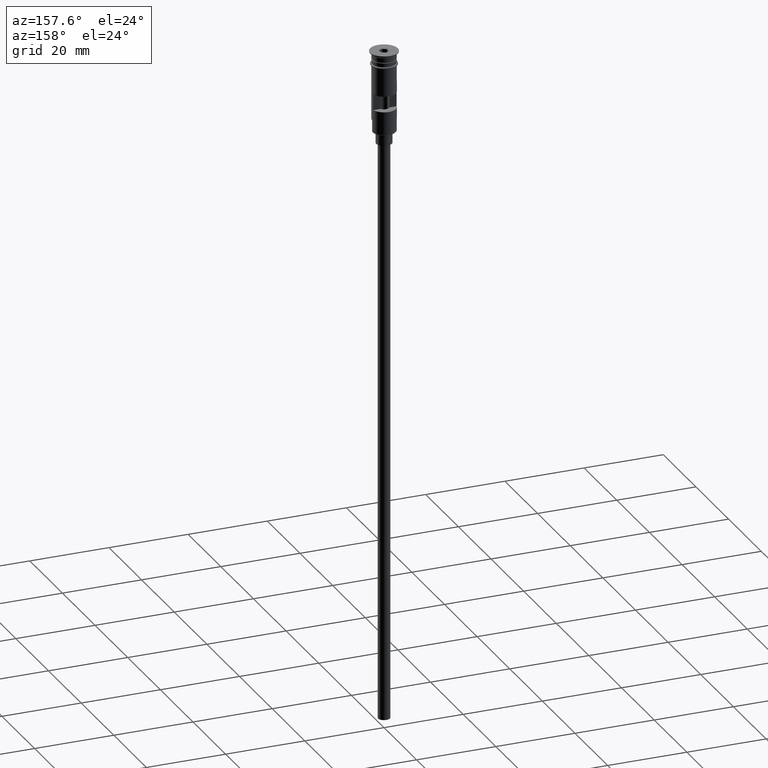
[diagram: clean part render]
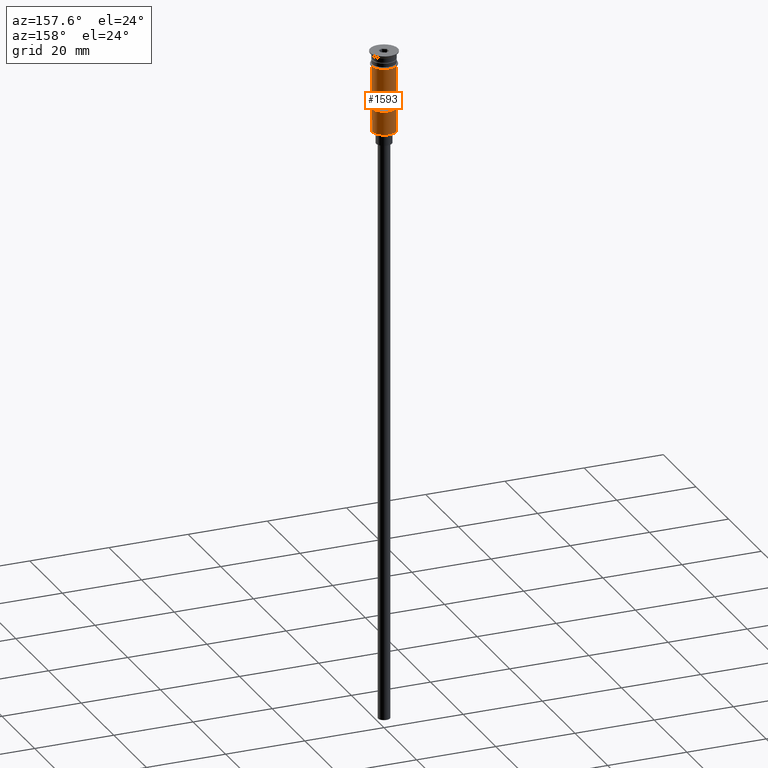
[diagram: same view with one face highlighted and labeled with its STEP entity id]
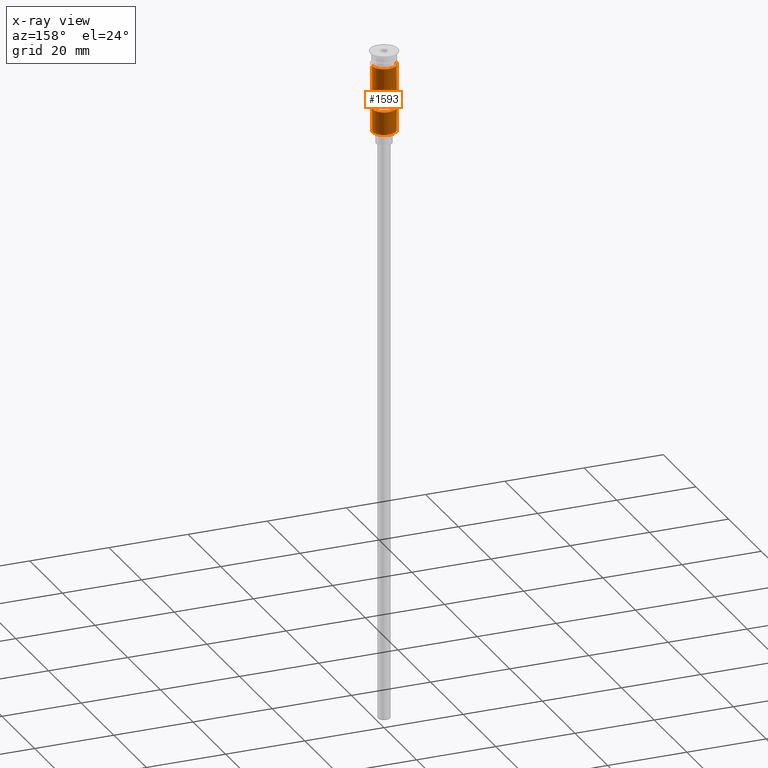
[diagram: x-ray of the same camera — body ghosted, the highlighted face saturated]
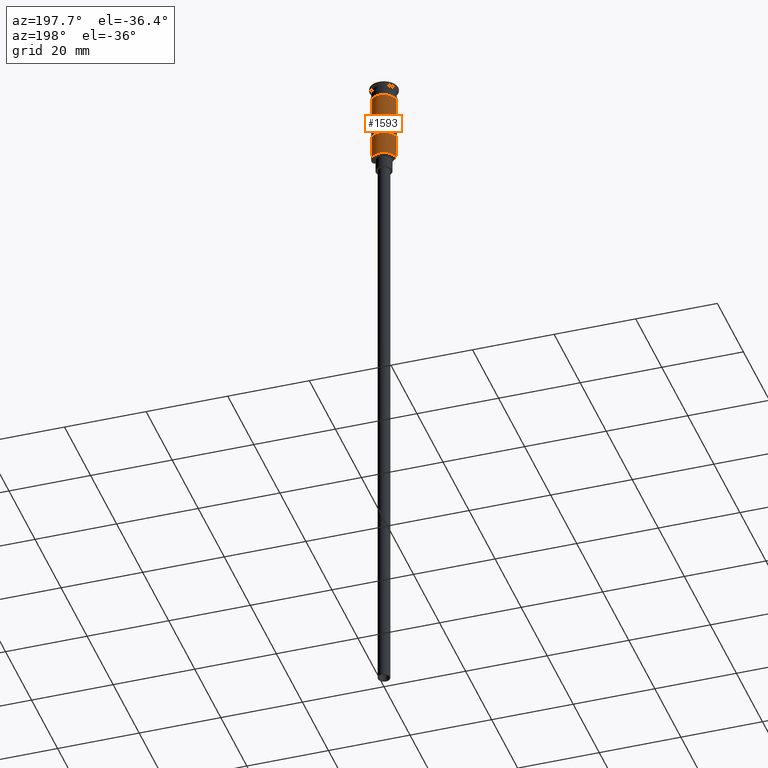
[diagram: same view with one face highlighted and labeled with its STEP entity id]
A machine part, auxiliary view. The second image highlights one B-rep face of the part: STEP entity #1593.
The next image is the same camera in x-ray: the body ghosted, the highlighted face saturated — about 0% of this face is hidden behind the body in this view.
A second angle (auxiliary view) of the same face is appended — the face is thin or edge-on in the first view.
In plain terms, the highlighted cylindrical surface (edge-blend (fillet) strip) has radius 3 mm, axis along (-0, -0, 1).
Its self-contained STEP definition (entity closure, byte-faithful):
#2 = CIRCLE ( 'NONE', #216, 2.999999999999996891 ) ;
#24 = CARTESIAN_POINT ( 'NONE',  ( -2.939387691339810260, 0.5999999999999994227, 0.000000000000000000 ) ) ;
#40 = CARTESIAN_POINT ( 'NONE',  ( 2.999999999999995115, 3.673940397442053952E-16, -20.29999999999995808 ) ) ;
#57 = VECTOR ( 'NONE', #165, 1000.000000000000000 ) ;
#77 = CARTESIAN_POINT ( 'NONE',  ( -2.999999999999996891, 3.673940397442055924E-16, 0.000000000000000000 ) ) ;
#89 = ORIENTED_EDGE ( 'NONE', *, *, #913, .F. ) ;
#93 = VERTEX_POINT ( 'NONE', #40 ) ;
#117 = VECTOR ( 'NONE', #1039, 1000.000000000000000 ) ;
#165 = DIRECTION ( 'NONE',  ( -0.000000000000000000, -0.000000000000000000, 1.000000000000000000 ) ) ;
#174 = CARTESIAN_POINT ( 'NONE',  ( -2.939387691339810260, 0.5999999999999994227, -14.50000000000000000 ) ) ;
#198 = ORIENTED_EDGE ( 'NONE', *, *, #960, .F. ) ;
#208 = LINE ( 'NONE', #1196, #1485 ) ;
#213 = EDGE_CURVE ( 'NONE', #93, #1006, #208, .T. ) ;
#216 = AXIS2_PLACEMENT_3D ( 'NONE', #497, #1384, #1230 ) ;
#234 = CARTESIAN_POINT ( 'NONE',  ( -2.999999999999995115, 0.000000000000000000, -20.29999999999995808 ) ) ;
#246 = EDGE_CURVE ( 'NONE', #93, #1001, #2, .T. ) ;
#261 = AXIS2_PLACEMENT_3D ( 'NONE', #1336, #1364, #603 ) ;
#271 = CARTESIAN_POINT ( 'NONE',  ( 2.939387691339810260, 0.5999999999999994227, 0.000000000000000000 ) ) ;
#299 = CYLINDRICAL_SURFACE ( 'NONE', #996, 2.999999999999996891 ) ;
#306 = VERTEX_POINT ( 'NONE', #865 ) ;
#403 = DIRECTION ( 'NONE',  ( -0.000000000000000000, -0.000000000000000000, 1.000000000000000000 ) ) ;
#436 = EDGE_CURVE ( 'NONE', #1506, #306, #1135, .T. ) ;
#477 = VECTOR ( 'NONE', #1169, 1000.000000000000000 ) ;
#485 = EDGE_CURVE ( 'NONE', #1001, #1172, #1299, .T. ) ;
#497 = CARTESIAN_POINT ( 'NONE',  ( 0.000000000000000000, 0.000000000000000000, -20.29999999999995808 ) ) ;
#508 = DIRECTION ( 'NONE',  ( 1.000000000000000000, 0.000000000000000000, 0.000000000000000000 ) ) ;
#518 = CARTESIAN_POINT ( 'NONE',  ( -2.999999999999995115, 0.000000000000000000, -17.30000000000000782 ) ) ;
#558 = CARTESIAN_POINT ( 'NONE',  ( -2.999999999999995115, 0.000000000000000000, -20.50000000000000000 ) ) ;
#565 = VECTOR ( 'NONE', #403, 1000.000000000000000 ) ;
#571 = DIRECTION ( 'NONE',  ( -0.000000000000000000, -0.000000000000000000, 1.000000000000000000 ) ) ;
#582 = CARTESIAN_POINT ( 'NONE',  ( -2.999999999999999112, 3.673940397442058389E-16, -3.499999999999998668 ) ) ;
#594 = VERTEX_POINT ( 'NONE', #1351 ) ;
#598 = EDGE_CURVE ( 'NONE', #1105, #1506, #888, .T. ) ;
#603 = DIRECTION ( 'NONE',  ( -1.000000000000000000, 0.000000000000000000, 0.000000000000000000 ) ) ;
#613 = ORIENTED_EDGE ( 'NONE', *, *, #436, .F. ) ;
#653 = ORIENTED_EDGE ( 'NONE', *, *, #1465, .F. ) ;
#676 = CARTESIAN_POINT ( 'NONE',  ( 0.000000000000000000, 0.000000000000000000, -10.50000000000000000 ) ) ;
#705 = ORIENTED_EDGE ( 'NONE', *, *, #1597, .T. ) ;
#768 = ORIENTED_EDGE ( 'NONE', *, *, #598, .F. ) ;
#769 = LINE ( 'NONE', #1286, #565 ) ;
#798 = DIRECTION ( 'NONE',  ( -0.000000000000000000, -0.000000000000000000, 1.000000000000000000 ) ) ;
#803 = ORIENTED_EDGE ( 'NONE', *, *, #485, .T. ) ;
#804 = DIRECTION ( 'NONE',  ( -0.000000000000000000, 0.000000000000000000, -1.000000000000000000 ) ) ;
#840 = CARTESIAN_POINT ( 'NONE',  ( 2.999999999999998668, 0.000000000000000000, -3.499999999999998668 ) ) ;
#865 = CARTESIAN_POINT ( 'NONE',  ( -2.939387691339810260, 0.5999999999999994227, -10.50000000000000000 ) ) ;
#871 = ORIENTED_EDGE ( 'NONE', *, *, #213, .F. ) ;
#888 = CIRCLE ( 'NONE', #261, 2.999999999999996891 ) ;
#895 = VECTOR ( 'NONE', #1328, 1000.000000000000000 ) ;
#913 = EDGE_CURVE ( 'NONE', #306, #594, #1235, .T. ) ;
#960 = EDGE_CURVE ( 'NONE', #1064, #998, #1178, .T. ) ;
#980 = CARTESIAN_POINT ( 'NONE',  ( 0.000000000000000000, 0.000000000000000000, -3.499999999999998668 ) ) ;
#996 = AXIS2_PLACEMENT_3D ( 'NONE', #1507, #798, #508 ) ;
#998 = VERTEX_POINT ( 'NONE', #582 ) ;
#1001 = VERTEX_POINT ( 'NONE', #234 ) ;
#1002 = LINE ( 'NONE', #77, #895 ) ;
#1006 = VERTEX_POINT ( 'NONE', #1213 ) ;
#1039 = DIRECTION ( 'NONE',  ( 0.000000000000000000, 0.000000000000000000, -1.000000000000000000 ) ) ;
#1053 = AXIS2_PLACEMENT_3D ( 'NONE', #980, #1098, #1456 ) ;
#1064 = VERTEX_POINT ( 'NONE', #840 ) ;
#1098 = DIRECTION ( 'NONE',  ( -0.000000000000000000, -0.000000000000000000, 1.000000000000000000 ) ) ;
#1105 = VERTEX_POINT ( 'NONE', #1108 ) ;
#1108 = CARTESIAN_POINT ( 'NONE',  ( 2.939387691339810260, 0.5999999999999994227, -14.50000000000000000 ) ) ;
#1135 = LINE ( 'NONE', #24, #57 ) ;
#1159 = DIRECTION ( 'NONE',  ( 1.000000000000000000, 0.000000000000000000, 0.000000000000000000 ) ) ;
#1169 = DIRECTION ( 'NONE',  ( -0.000000000000000000, -0.000000000000000000, 1.000000000000000000 ) ) ;
#1172 = VERTEX_POINT ( 'NONE', #518 ) ;
#1175 = EDGE_LOOP ( 'NONE', ( #1379, #89, #613, #768 ) ) ;
#1178 = CIRCLE ( 'NONE', #1053, 2.999999999999998668 ) ;
#1181 = AXIS2_PLACEMENT_3D ( 'NONE', #676, #804, #1159 ) ;
#1196 = CARTESIAN_POINT ( 'NONE',  ( 2.999999999999995115, 3.673940397442053952E-16, -20.50000000000000000 ) ) ;
#1213 = CARTESIAN_POINT ( 'NONE',  ( 2.999999999999996891, 3.673940397442055924E-16, -17.30000000000000782 ) ) ;
#1230 = DIRECTION ( 'NONE',  ( -1.000000000000000000, 0.000000000000000000, 0.000000000000000000 ) ) ;
#1235 = CIRCLE ( 'NONE', #1181, 2.999999999999996891 ) ;
#1258 = FACE_OUTER_BOUND ( 'NONE', #1440, .T. ) ;
#1271 = ORIENTED_EDGE ( 'NONE', *, *, #246, .T. ) ;
#1286 = CARTESIAN_POINT ( 'NONE',  ( 2.999999999999996891, 0.000000000000000000, 0.000000000000000000 ) ) ;
#1299 = LINE ( 'NONE', #558, #477 ) ;
#1328 = DIRECTION ( 'NONE',  ( -0.000000000000000000, -0.000000000000000000, 1.000000000000000000 ) ) ;
#1336 = CARTESIAN_POINT ( 'NONE',  ( 0.000000000000000000, 0.000000000000000000, -14.50000000000000000 ) ) ;
#1351 = CARTESIAN_POINT ( 'NONE',  ( 2.939387691339810260, 0.5999999999999994227, -10.50000000000000000 ) ) ;
#1364 = DIRECTION ( 'NONE',  ( 0.000000000000000000, 0.000000000000000000, 1.000000000000000000 ) ) ;
#1379 = ORIENTED_EDGE ( 'NONE', *, *, #1471, .F. ) ;
#1384 = DIRECTION ( 'NONE',  ( 0.000000000000000000, 0.000000000000000000, 1.000000000000000000 ) ) ;
#1405 = LINE ( 'NONE', #271, #117 ) ;
#1415 = FACE_BOUND ( 'NONE', #1175, .T. ) ;
#1440 = EDGE_LOOP ( 'NONE', ( #803, #705, #198, #653, #871, #1271 ) ) ;
#1456 = DIRECTION ( 'NONE',  ( 1.000000000000000000, 0.000000000000000000, 0.000000000000000000 ) ) ;
#1465 = EDGE_CURVE ( 'NONE', #1006, #1064, #769, .T. ) ;
#1471 = EDGE_CURVE ( 'NONE', #594, #1105, #1405, .T. ) ;
#1485 = VECTOR ( 'NONE', #571, 1000.000000000000000 ) ;
#1506 = VERTEX_POINT ( 'NONE', #174 ) ;
#1507 = CARTESIAN_POINT ( 'NONE',  ( 0.000000000000000000, 0.000000000000000000, 0.000000000000000000 ) ) ;
#1593 = ADVANCED_FACE ( 'NONE', ( #1415, #1258 ), #299, .T. ) ;
#1597 = EDGE_CURVE ( 'NONE', #1172, #998, #1002, .T. ) ;